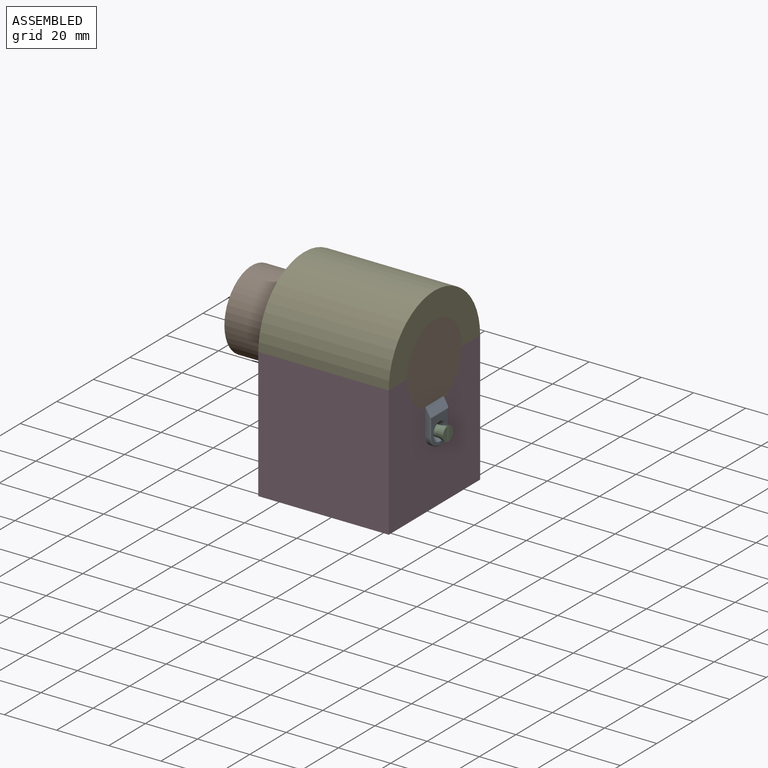
[diagram: assembled view]
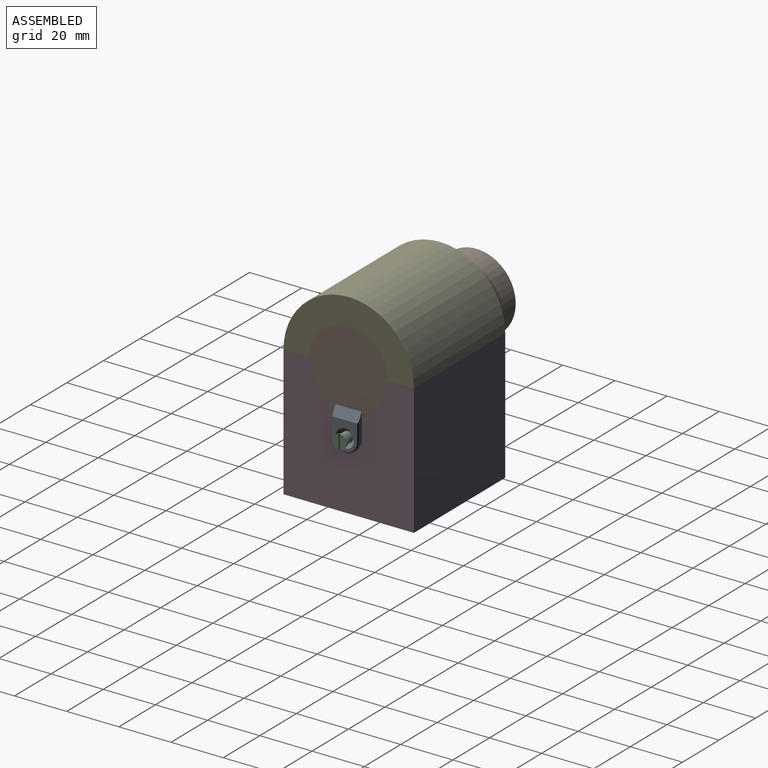
[diagram: assembled view, second angle]
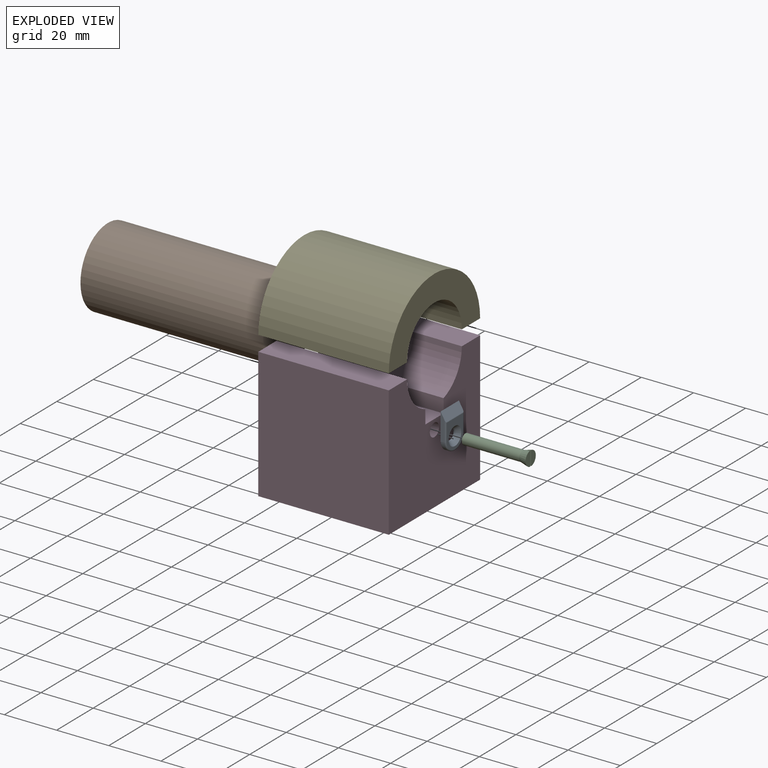
[diagram: exploded view]
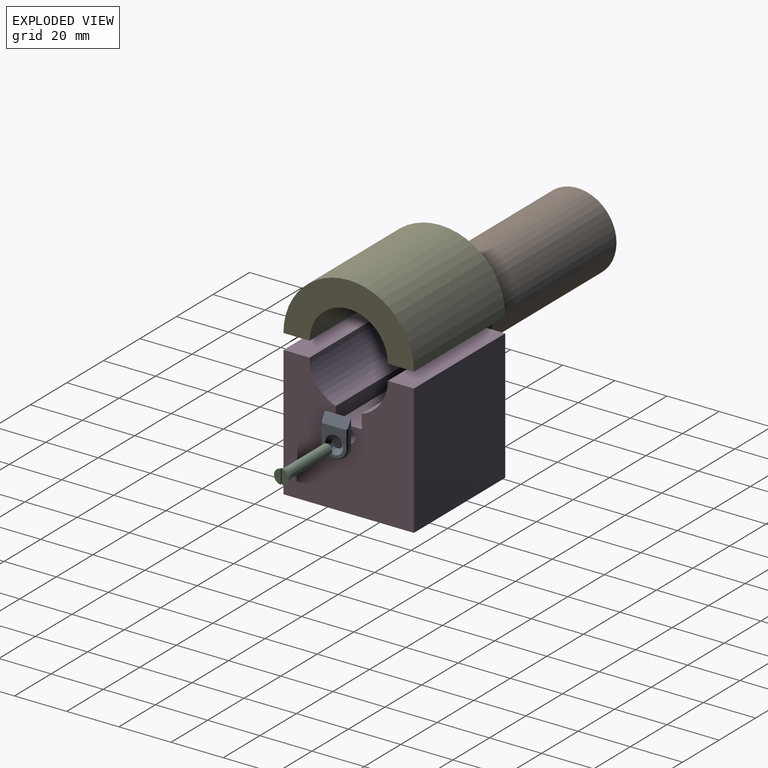
[diagram: exploded view, second angle]
ASSEMBLY  parts=5 mates=6
PART A: 12 faces, bbox 2x10.8x15.3 mm
  f0: plane 10.55x1.5mm, normal (0,1,0), area 13.9mm2, adj f3,f5,f6,f9
  f1: plane 10.43x1.5mm, normal (0,-1,0), area 13.7mm2, adj f3,f5,f6,f10
  f2: cylinder r=2mm len=4mm, axis (-1,0,0), area 6.3mm2, adj f5,f7
  f3: cylinder r=5.04mm len=10mm, axis (-1,0,0), area 21.8mm2, adj f0,f1,f5,f8
  f4: plane 10.78x9mm, normal (1,0,0), area 50mm2, adj f7,f8,f9,f10,f11
  f5: plane 14.88x10mm, normal (-1,0,0), area 125.7mm2, adj f0,f1,f2,f3,f6
  f6: plane 10x3.35mm, normal (0.87,0,0.5), area 38.5mm2, adj f0,f1,f5,f9,f10,f11
  f7: cone r=2mm half-angle=45deg, axis (1,0,0), area 36.7mm2, adj f2,f4
  f8: torus R=4.54mm, axis (1,0,0), area 11mm2, adj f3,f4,f9,f10
  f9: cylinder r=0.5mm len=7.95mm, axis (0,0,-1), area 5.8mm2, adj f0,f4,f6,f8,f11
  f10: cylinder r=0.5mm len=7.83mm, axis (0,0,1), area 5.7mm2, adj f1,f4,f6,f8,f11
  f11: cylinder r=0.5mm len=9.5mm, axis (0,-1,0), area 2.4mm2, adj f4,f6,f9,f10
PART B: 3 faces, bbox 70x30x30 mm
  f0: cylinder r=15mm len=70mm, axis (-1,0,0), area 6597.3mm2, adj f1,f2
  f1: plane 30x30mm, normal (1,0,0), area 706.9mm2, adj f0
  f2: plane 30x30mm, normal (-1,0,0), area 706.9mm2, adj f0
PART C: 8 faces, bbox 25x5.6x5.6 mm
  f0: plane 5.57x2.54mm, normal (1,0,0), area 10.9mm2, adj f1,f5
  f1: cone r=3mm half-angle=15deg, axis (1,0,0), area 45.5mm2, adj f0,f2,f3,f5,f6,f7
  f2: plane 5.57x2.54mm, normal (1,0,0), area 10.9mm2, adj f1,f6
  f3: cylinder r=2mm len=22.02mm, axis (1,0,0), area 276.7mm2, adj f1,f4
  f4: plane 4x4mm, normal (-1,0,0), area 12.6mm2, adj f3
  f5: plane 5.58x1mm, normal (0,-1,0), area 5.3mm2, adj f0,f1,f7
  f6: plane 5.58x1mm, normal (0,1,0), area 5.3mm2, adj f1,f2,f7
  f7: plane 5.06x0.52mm, normal (1,0,0), area 2.6mm2, adj f1,f5,f6
PART D: 14 faces, bbox 50x50x50 mm
  f0: cylinder r=15mm len=50mm, axis (-1,0,0), area 923.2mm2, adj f1,f9,f10,f11
  f1: plane 50x10mm, normal (0,0,1), area 500mm2, adj f0,f2,f10,f11
  f2: plane 50x50mm, normal (0,-1,0), area 2500mm2, adj f1,f3,f10,f11
  f3: plane 50x50mm, normal (0,0,-1), area 2500mm2, adj f2,f4,f10,f11
  f4: plane 50x50mm, normal (0,1,0), area 2500mm2, adj f3,f5,f10,f11
  f5: plane 50x10mm, normal (0,0,1), area 500mm2, adj f4,f6,f10,f11
  f6: cylinder r=15mm len=50mm, axis (-1,0,0), area 923.2mm2, adj f5,f7,f10,f11
  f7: plane 50x5.3mm, normal (0,-1,0), area 264.8mm2, adj f6,f8,f10,f11
  f8: plane 50x10mm, normal (0,0,1), area 500mm2, adj f7,f9,f10,f11
  f9: plane 50x5.3mm, normal (0,1,0), area 264.8mm2, adj f0,f8,f10,f11
  f10: plane 50x50mm, normal (1,0,0), area 2079.7mm2, adj f0,f1,f2,f3,f4,f5,f6,f7
  f11: plane 50x50mm, normal (-1,0,0), area 2099.4mm2, adj f0,f1,f2,f3,f4,f5,f6,f7
  f12: cylinder r=2.5mm len=30mm, axis (1,0,0), area 471.2mm2, adj f10,f13
  f13: plane 5x5mm, normal (1,0,0), area 19.6mm2, adj f12
PART E: 6 faces, bbox 50x50x25 mm
  f0: plane 50x10mm, normal (0,0,-1), area 500mm2, adj f1,f3,f4,f5
  f1: cylinder r=15mm len=50mm, axis (-1,0,0), area 2356.2mm2, adj f0,f2,f4,f5
  f2: plane 50x10mm, normal (0,0,-1), area 500mm2, adj f1,f3,f4,f5
  f3: cylinder r=25mm len=50mm, axis (-1,0,0), area 3927mm2, adj f0,f2,f4,f5
  f4: plane 50x25mm, normal (1,0,0), area 628.3mm2, adj f0,f1,f2,f3
  f5: plane 50x25mm, normal (-1,0,0), area 628.3mm2, adj f0,f1,f2,f3
PLACE A t=(53.25,-0.67,-63.7)mm
PLACE B rot(axis=(1,0,0),90deg) t=(-16.75,-0.67,-42.85)mm
PLACE C t=(55.44,-0.67,-66.07)mm
PLACE D t=(3.25,-0.67,-67.85)mm
PLACE E t=(3.25,-0.67,-67.85)mm
MATE cylindrical D.f1 <-> E.f0  axis (0,0,1) through (28.25,-20.67,-42.85)mm
MATE cylindrical D.f12 <-> C.f3  axis (1,0,0) through (38.25,-0.67,-66.07)mm
MATE cylindrical B.f0 <-> E.f1  axis (-1,0,0) through (18.25,-0.67,-42.85)mm
MATE cylindrical D.f0 <-> B.f0  axis (-1,0,0) through (53.25,-0.67,-42.85)mm
MATE planar B.f0 <-> A.f5  axis (1,0,0) through (53.25,-0.67,-42.85)mm
MATE fastened A.f2 <-> D.f12  axis (-1,0,0) through (53.25,-0.67,-66.07)mm
